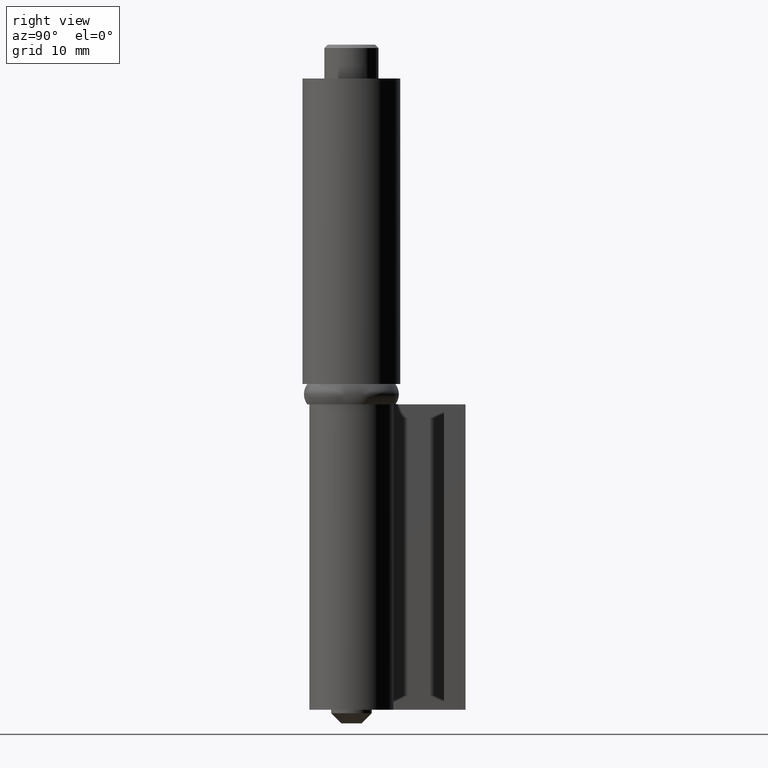
[diagram: clean part render]
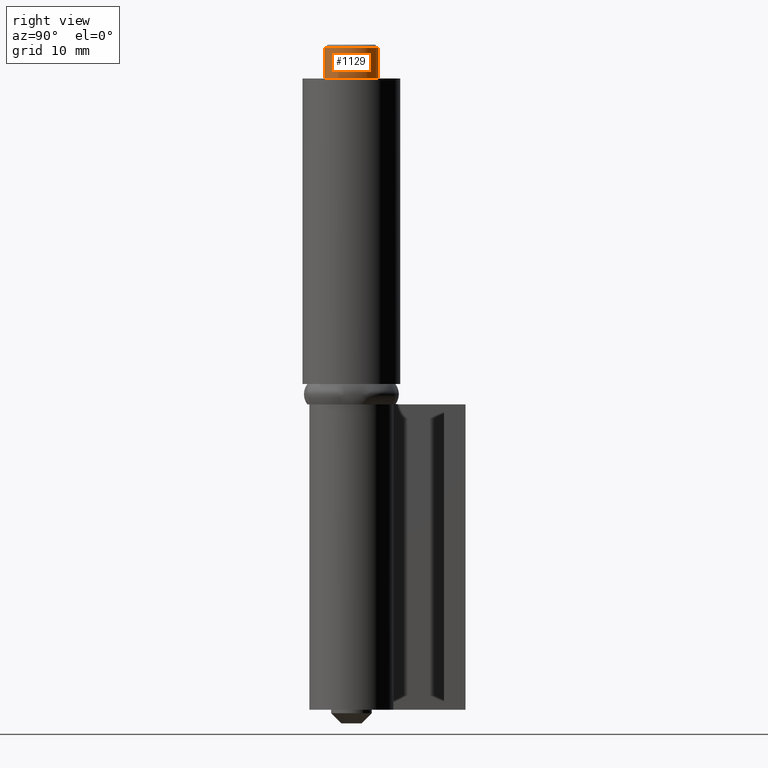
[diagram: same view with one face highlighted and labeled with its STEP entity id]
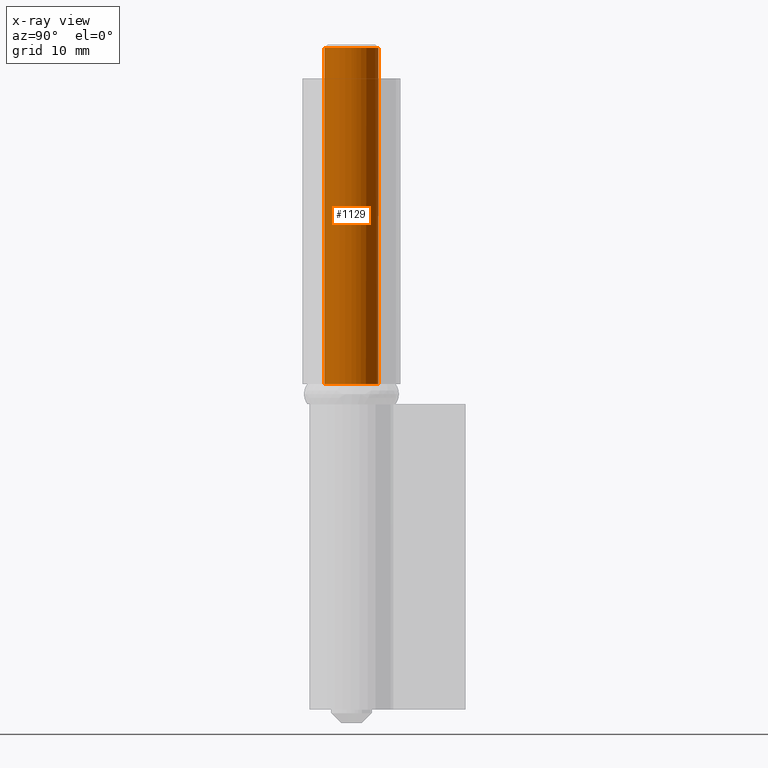
[diagram: x-ray of the same camera — body ghosted, the highlighted face saturated]
A machine part, right view. The second image highlights one B-rep face of the part: STEP entity #1129.
The next image is the same camera in x-ray: the body ghosted, the highlighted face saturated — about 0% of this face is hidden behind the body in this view.
In plain terms, the highlighted face is a freeform B-spline surface patch.
Its self-contained STEP definition (entity closure, byte-faithful):
#875=CARTESIAN_POINT('',(3.744574314986167,1.406471898009539,99.499999999956913));
#876=VERTEX_POINT('',#875);
#877=CARTESIAN_POINT('',(4.0,0.0,99.500000000000000));
#878=VERTEX_POINT('',#877);
#879=CARTESIAN_POINT('',(3.744574314986168,1.406471898009539,99.499999999956913));
#880=CARTESIAN_POINT('',(4.0,0.726429544739428,99.500000000000000));
#881=CARTESIAN_POINT('',(4.0,0.0,99.500000000000000));
#889=(BOUNDED_CURVE()B_SPLINE_CURVE(2,(#879,#880,#881),.UNSPECIFIED.,.F.,.U.)B_SPLINE_CURVE_WITH_KNOTS((3,3),(0.440284170862794,0.500000000000000),.UNSPECIFIED.)CURVE()GEOMETRIC_REPRESENTATION_ITEM()RATIONAL_B_SPLINE_CURVE((0.893499554591569,0.930038554359558,1.0))REPRESENTATION_ITEM(''));
#890=EDGE_CURVE('',#876,#878,#889,.T.);
#929=CARTESIAN_POINT('',(0.244194158267695,-3.992539193679622,99.500000000000000));
#930=VERTEX_POINT('',#929);
#936=CARTESIAN_POINT('',(4.0,0.0,99.500000000000000));
#937=CARTESIAN_POINT('',(4.0,-3.762824267138351,99.500000000000000));
#938=CARTESIAN_POINT('',(0.244194158267695,-3.992539193679622,99.500000000000000));
#946=(BOUNDED_CURVE()B_SPLINE_CURVE(2,(#936,#937,#938),.UNSPECIFIED.,.F.,.U.)B_SPLINE_CURVE_WITH_KNOTS((3,3),(0.500000000000000,0.739332962219796),.UNSPECIFIED.)CURVE()GEOMETRIC_REPRESENTATION_ITEM()RATIONAL_B_SPLINE_CURVE((1.0,0.719603993309142,0.976072041625682))REPRESENTATION_ITEM(''));
#947=EDGE_CURVE('',#878,#930,#946,.T.);
#974=CARTESIAN_POINT('',(-0.472136938817964,3.972038105431970,99.500000000000000));
#975=VERTEX_POINT('',#974);
#976=CARTESIAN_POINT('',(-0.472136938817964,3.972038105431970,99.500000000000000));
#977=CARTESIAN_POINT('',(-0.236896478800589,4.0,99.499999999999986));
#978=CARTESIAN_POINT('',(0.0,4.0,99.500000000000000));
#979=CARTESIAN_POINT('',(2.770438382101009,4.000000000000000,99.500000000000000));
#980=CARTESIAN_POINT('',(3.744574314986167,1.406471898009539,99.499999999956913));
#988=(BOUNDED_CURVE()B_SPLINE_CURVE(2,(#976,#977,#978,#979,#980),.UNSPECIFIED.,.F.,.U.)B_SPLINE_CURVE_WITH_KNOTS((3,2,3),(0.229562473499397,0.250000000000000,0.440284170862794),.UNSPECIFIED.)CURVE()GEOMETRIC_REPRESENTATION_ITEM()RATIONAL_B_SPLINE_CURVE((0.956026754156040,0.976055948314612,1.0,0.777068226826989,0.893499554591569))REPRESENTATION_ITEM(''));
#989=EDGE_CURVE('',#975,#876,#988,.T.);
#1058=CARTESIAN_POINT('',(-0.472136938627034,3.972038105454666,100.737500000000030));
#1059=CARTESIAN_POINT('',(-0.358458914551911,3.985550461794422,100.737500000000010));
#1060=CARTESIAN_POINT('',(-0.244194158139428,3.992539193687467,100.737500000000000));
#1061=CARTESIAN_POINT('',(3.748345035548039,4.236733351826894,100.737500000000010));
#1062=CARTESIAN_POINT('',(3.992539193687467,0.244194158139428,100.737500000000000));
#1063=CARTESIAN_POINT('',(4.236733351826894,-3.748345035548039,100.737500000000010));
#1064=CARTESIAN_POINT('',(0.244194158139428,-3.992539193687467,100.737500000000000));
#1065=CARTESIAN_POINT('',(-0.472136938627034,3.972038105454666,48.731562500000003));
#1066=CARTESIAN_POINT('',(-0.358458914551911,3.985550461794422,48.731562500000003));
#1067=CARTESIAN_POINT('',(-0.244194158139428,3.992539193687467,48.731562500000003));
#1068=CARTESIAN_POINT('',(3.748345035548039,4.236733351826894,48.731562499999995));
#1069=CARTESIAN_POINT('',(3.992539193687467,0.244194158139428,48.731562500000003));
#1070=CARTESIAN_POINT('',(4.236733351826894,-3.748345035548039,48.731562499999995));
#1071=CARTESIAN_POINT('',(0.244194158139428,-3.992539193687467,48.731562500000003));
#1079=(BOUNDED_SURFACE()B_SPLINE_SURFACE(2,1,((#1058,#1065),(#1059,#1066),(#1060,#1067),(#1061,#1068),(#1062,#1069),(#1063,#1070),(#1064,#1071)),.UNSPECIFIED.,.F.,.F.,.U.)B_SPLINE_SURFACE_WITH_KNOTS((3,2,2,3),(2,2),(0.0,0.265096679918781,6.892513677888299,13.519930675857820),(0.0,52.005937500000030),.UNSPECIFIED.)GEOMETRIC_REPRESENTATION_ITEM()RATIONAL_B_SPLINE_SURFACE(((0.977505800795127,0.977505800795127),(0.988284271247462,0.988284271247462),(1.0,1.0),(0.707106781186548,0.707106781186548),(1.0,1.0),(0.707106781186548,0.707106781186548),(1.0,1.0)))REPRESENTATION_ITEM('')SURFACE());
#1080=ORIENTED_EDGE('',*,*,#989,.T.);
#1081=ORIENTED_EDGE('',*,*,#890,.T.);
#1082=ORIENTED_EDGE('',*,*,#947,.T.);
#1083=CARTESIAN_POINT('',(0.244194158395961,-3.992539193671777,50.0));
#1084=VERTEX_POINT('',#1083);
#1085=CARTESIAN_POINT('',(0.244194158267695,-3.992539193679622,99.500000000000000));
#1086=CARTESIAN_POINT('',(0.244194158395961,-3.992539193671777,50.0));
#1087=QUASI_UNIFORM_CURVE('',1,(#1085,#1086),.UNSPECIFIED.,.F.,.U.);
#1088=EDGE_CURVE('',#930,#1084,#1087,.T.);
#1089=ORIENTED_EDGE('',*,*,#1088,.T.);
#1090=CARTESIAN_POINT('',(4.0,0.0,50.0));
#1091=VERTEX_POINT('',#1090);
#1092=CARTESIAN_POINT('',(4.0,0.0,50.0));
#1093=CARTESIAN_POINT('',(4.0,-3.762824267138351,49.999999999999993));
#1094=CARTESIAN_POINT('',(0.244194158395961,-3.992539193671777,49.999999999999993));
#1102=(BOUNDED_CURVE()B_SPLINE_CURVE(2,(#1092,#1093,#1094),.UNSPECIFIED.,.F.,.U.)B_SPLINE_CURVE_WITH_KNOTS((3,3),(0.500000000000000,0.739332962219796),.UNSPECIFIED.)CURVE()GEOMETRIC_REPRESENTATION_ITEM()RATIONAL_B_SPLINE_CURVE((1.0,0.719603993309142,0.976072041625682))REPRESENTATION_ITEM(''));
#1103=EDGE_CURVE('',#1091,#1084,#1102,.T.);
#1104=ORIENTED_EDGE('',*,*,#1103,.F.);
#1105=CARTESIAN_POINT('',(-0.472136938817964,3.972038105431970,50.0));
#1106=VERTEX_POINT('',#1105);
#1107=CARTESIAN_POINT('',(-0.472136938817965,3.972038105431971,50.0));
#1108=CARTESIAN_POINT('',(-0.236896478800589,4.0,49.999999999999993));
#1109=CARTESIAN_POINT('',(0.0,4.0,50.0));
#1110=CARTESIAN_POINT('',(4.000000000000000,4.000000000000000,50.0));
#1111=CARTESIAN_POINT('',(4.0,0.0,50.0));
#1119=(BOUNDED_CURVE()B_SPLINE_CURVE(2,(#1107,#1108,#1109,#1110,#1111),.UNSPECIFIED.,.F.,.U.)B_SPLINE_CURVE_WITH_KNOTS((3,2,3),(0.229562473499397,0.250000000000000,0.500000000000000),.UNSPECIFIED.)CURVE()GEOMETRIC_REPRESENTATION_ITEM()RATIONAL_B_SPLINE_CURVE((0.956026754156040,0.976055948314612,1.0,0.707106781186548,1.0))REPRESENTATION_ITEM(''));
#1120=EDGE_CURVE('',#1106,#1091,#1119,.T.);
#1121=ORIENTED_EDGE('',*,*,#1120,.F.);
#1122=CARTESIAN_POINT('',(-0.472136938817964,3.972038105431970,99.500000000000000));
#1123=CARTESIAN_POINT('',(-0.472136938817964,3.972038105431970,50.0));
#1124=QUASI_UNIFORM_CURVE('',1,(#1122,#1123),.UNSPECIFIED.,.F.,.U.);
#1125=EDGE_CURVE('',#975,#1106,#1124,.T.);
#1126=ORIENTED_EDGE('',*,*,#1125,.F.);
#1127=EDGE_LOOP('',(#1080,#1081,#1082,#1089,#1104,#1121,#1126));
#1128=FACE_OUTER_BOUND('',#1127,.T.);
#1129=ADVANCED_FACE('',(#1128),#1079,.T.);